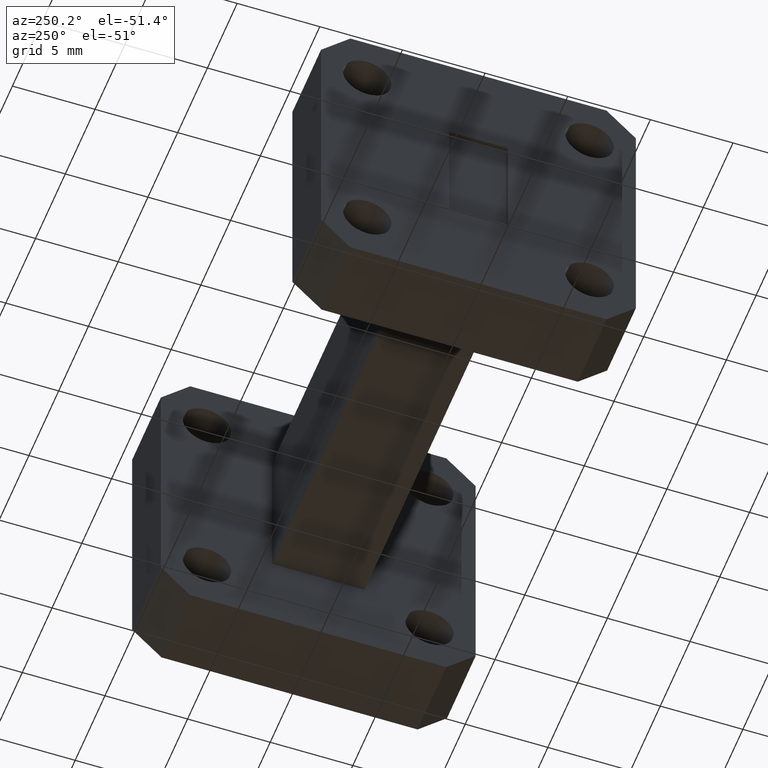
[diagram: clean part render]
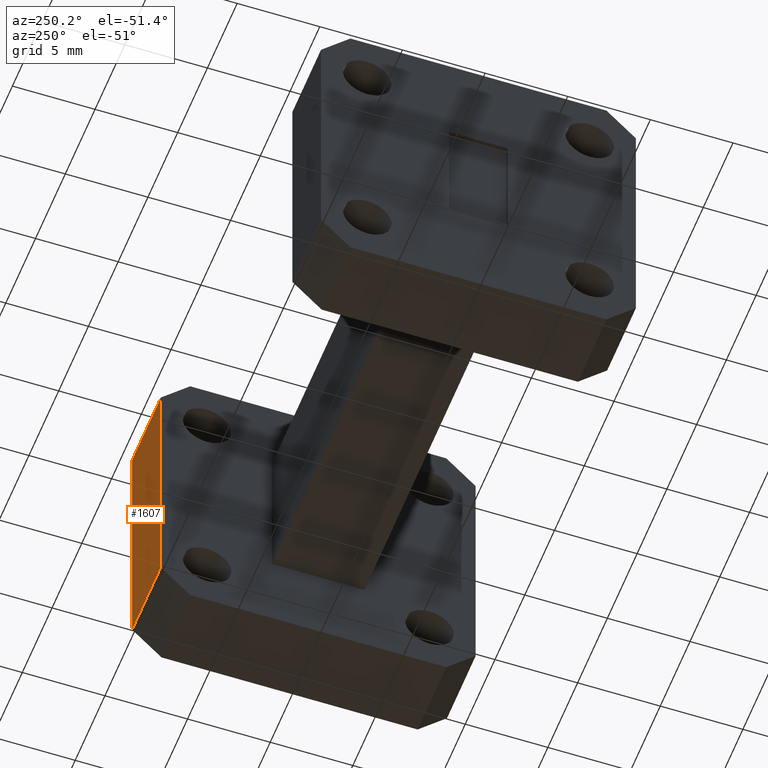
[diagram: same view with one face highlighted and labeled with its STEP entity id]
A machine part, auxiliary view. The second image highlights one B-rep face of the part: STEP entity #1607.
In plain terms, the highlighted planar face has unit normal (0, -1, 0).
Its self-contained STEP definition (entity closure, byte-faithful):
#24 = CARTESIAN_POINT ( 'NONE',  ( 1.250000000000000000, 0.3750000000000001110, -0.3050000000000000488 ) ) ;
#93 = VECTOR ( 'NONE', #1654, 39.37007874015748143 ) ;
#94 = FACE_OUTER_BOUND ( 'NONE', #1223, .T. ) ;
#119 = EDGE_CURVE ( 'NONE', #1186, #831, #1135, .T. ) ;
#208 = DIRECTION ( 'NONE',  ( -1.000000000000000000, -0.000000000000000000, -0.000000000000000000 ) ) ;
#254 = LINE ( 'NONE', #751, #93 ) ;
#284 = VERTEX_POINT ( 'NONE', #434 ) ;
#298 = VECTOR ( 'NONE', #1661, 39.37007874015748143 ) ;
#381 = ORIENTED_EDGE ( 'NONE', *, *, #699, .F. ) ;
#413 = DIRECTION ( 'NONE',  ( 0.000000000000000000, -0.000000000000000000, -1.000000000000000000 ) ) ;
#434 = CARTESIAN_POINT ( 'NONE',  ( 1.060000000000000053, 0.3750000000000001110, -0.3050000000000000488 ) ) ;
#480 = ORIENTED_EDGE ( 'NONE', *, *, #860, .T. ) ;
#524 = VECTOR ( 'NONE', #208, 39.37007874015748143 ) ;
#544 = CARTESIAN_POINT ( 'NONE',  ( 1.250000000000000000, 0.3750000000000001110, 0.3049999999999997713 ) ) ;
#665 = CARTESIAN_POINT ( 'NONE',  ( 1.250000000000000000, 0.3750000000000001110, 0.3049999999999997713 ) ) ;
#699 = EDGE_CURVE ( 'NONE', #831, #1238, #1488, .T. ) ;
#725 = CARTESIAN_POINT ( 'NONE',  ( 1.250000000000000000, 0.3750000000000001110, 0.3049999999999997713 ) ) ;
#751 = CARTESIAN_POINT ( 'NONE',  ( 1.060000000000000053, 0.3750000000000001110, 0.3049999999999997713 ) ) ;
#831 = VERTEX_POINT ( 'NONE', #665 ) ;
#860 = EDGE_CURVE ( 'NONE', #284, #1238, #254, .T. ) ;
#1052 = CARTESIAN_POINT ( 'NONE',  ( 1.060000000000000053, 0.3750000000000001110, 0.3049999999999997713 ) ) ;
#1095 = LINE ( 'NONE', #1280, #1204 ) ;
#1105 = EDGE_CURVE ( 'NONE', #1186, #284, #1095, .T. ) ;
#1135 = LINE ( 'NONE', #1282, #298 ) ;
#1186 = VERTEX_POINT ( 'NONE', #24 ) ;
#1204 = VECTOR ( 'NONE', #1602, 39.37007874015748143 ) ;
#1223 = EDGE_LOOP ( 'NONE', ( #480, #381, #1627, #1457 ) ) ;
#1238 = VERTEX_POINT ( 'NONE', #1052 ) ;
#1280 = CARTESIAN_POINT ( 'NONE',  ( 1.250000000000000000, 0.3750000000000001110, -0.3050000000000000488 ) ) ;
#1282 = CARTESIAN_POINT ( 'NONE',  ( 1.250000000000000000, 0.3750000000000001110, 0.3049999999999997713 ) ) ;
#1457 = ORIENTED_EDGE ( 'NONE', *, *, #1105, .T. ) ;
#1488 = LINE ( 'NONE', #725, #524 ) ;
#1493 = AXIS2_PLACEMENT_3D ( 'NONE', #544, #1532, #413 ) ;
#1515 = PLANE ( 'NONE',  #1493 ) ;
#1532 = DIRECTION ( 'NONE',  ( 0.000000000000000000, -1.000000000000000000, 0.000000000000000000 ) ) ;
#1602 = DIRECTION ( 'NONE',  ( -1.000000000000000000, -0.000000000000000000, -0.000000000000000000 ) ) ;
#1607 = ADVANCED_FACE ( 'NONE', ( #94 ), #1515, .F. ) ;
#1627 = ORIENTED_EDGE ( 'NONE', *, *, #119, .F. ) ;
#1654 = DIRECTION ( 'NONE',  ( -0.000000000000000000, -0.000000000000000000, 1.000000000000000000 ) ) ;
#1661 = DIRECTION ( 'NONE',  ( -0.000000000000000000, -0.000000000000000000, 1.000000000000000000 ) ) ;